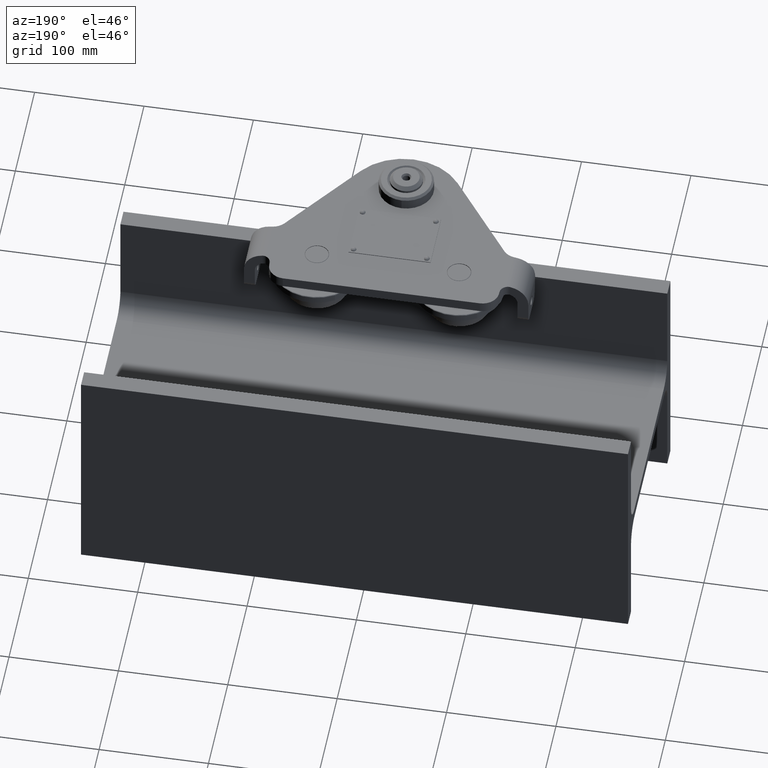
[diagram: clean part render]
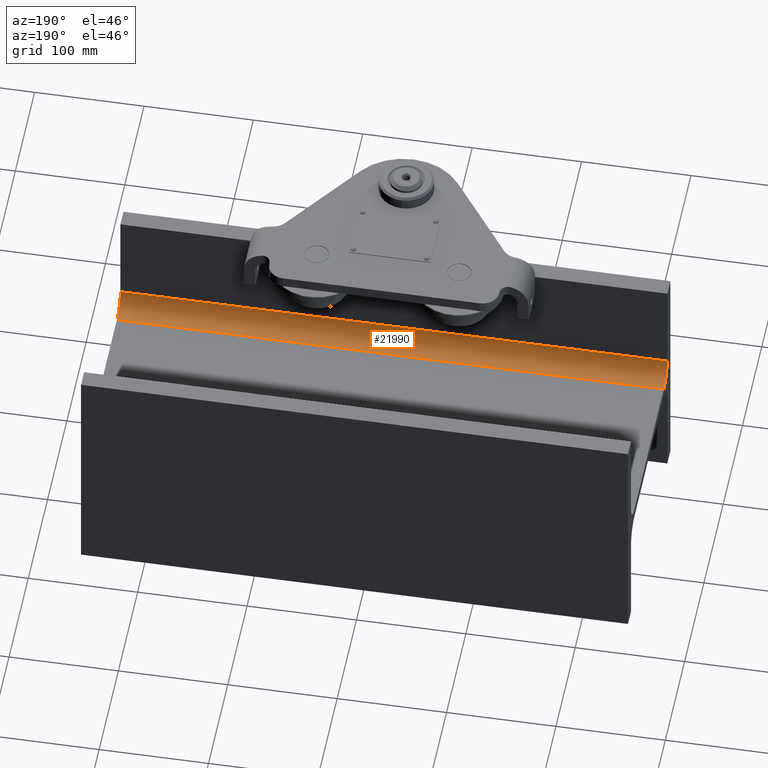
[diagram: same view with one face highlighted and labeled with its STEP entity id]
A machine part, auxiliary view. The second image highlights one B-rep face of the part: STEP entity #21990.
In plain terms, the highlighted cylindrical surface (edge-blend (fillet) strip) has radius 18 mm, axis along (1, 0, 0).
Its self-contained STEP definition (entity closure, byte-faithful):
#1301 = LINE ( 'NONE', #34233, #18823 ) ;
#3145 = EDGE_CURVE ( 'NONE', #26705, #13716, #1301, .T. ) ;
#3548 = AXIS2_PLACEMENT_3D ( 'NONE', #15181, #9466, #8940 ) ;
#3673 = VERTEX_POINT ( 'NONE', #33927 ) ;
#6015 = CARTESIAN_POINT ( 'NONE',  ( 250.0000000000000600, -75.99999999999973000, 22.74999999999997900 ) ) ;
#6408 = ORIENTED_EDGE ( 'NONE', *, *, #22876, .T. ) ;
#8940 = DIRECTION ( 'NONE',  ( 0.0000000000000000000, 0.0000000000000000000, -1.000000000000000000 ) ) ;
#9466 = DIRECTION ( 'NONE',  ( 1.000000000000000000, 0.0000000000000000000, 7.703719777548941700E-034 ) ) ;
#9697 = EDGE_CURVE ( 'NONE', #3673, #38536, #37397, .T. ) ;
#9775 = EDGE_CURVE ( 'NONE', #3673, #26705, #23555, .T. ) ;
#12147 = CARTESIAN_POINT ( 'NONE',  ( -250.0000000000000600, -93.99999999999974400, 22.74999999999991100 ) ) ;
#12946 = DIRECTION ( 'NONE',  ( 0.0000000000000000000, 0.0000000000000000000, -1.000000000000000000 ) ) ;
#13716 = VERTEX_POINT ( 'NONE', #17933 ) ;
#15181 = CARTESIAN_POINT ( 'NONE',  ( -250.0000000000000600, -75.99999999999973000, 22.74999999999997900 ) ) ;
#15240 = DIRECTION ( 'NONE',  ( 1.000000000000000000, 0.0000000000000000000, 7.703719777548941700E-034 ) ) ;
#17933 = CARTESIAN_POINT ( 'NONE',  ( 250.0000000000000600, -75.99999999999973000, 4.749999999999965400 ) ) ;
#18351 = CYLINDRICAL_SURFACE ( 'NONE', #3548, 18.00000000000001400 ) ;
#18823 = VECTOR ( 'NONE', #36938, 1000.000000000000000 ) ;
#19173 = DIRECTION ( 'NONE',  ( 1.000000000000000000, 0.0000000000000000000, 7.703719777548941700E-034 ) ) ;
#21427 = DIRECTION ( 'NONE',  ( 0.0000000000000000000, 0.0000000000000000000, -1.000000000000000000 ) ) ;
#21990 = ADVANCED_FACE ( 'NONE', ( #35931 ), #18351, .F. ) ;
#22876 = EDGE_CURVE ( 'NONE', #38536, #13716, #24730, .T. ) ;
#23555 = CIRCLE ( 'NONE', #26516, 18.00000000000001400 ) ;
#24730 = CIRCLE ( 'NONE', #34042, 18.00000000000001400 ) ;
#26516 = AXIS2_PLACEMENT_3D ( 'NONE', #33999, #19173, #12946 ) ;
#26705 = VERTEX_POINT ( 'NONE', #37288 ) ;
#28857 = ORIENTED_EDGE ( 'NONE', *, *, #9697, .T. ) ;
#30936 = CARTESIAN_POINT ( 'NONE',  ( 250.0000000000000600, -93.99999999999974400, 22.74999999999991100 ) ) ;
#33554 = DIRECTION ( 'NONE',  ( 1.000000000000000000, 0.0000000000000000000, 7.703719777548941700E-034 ) ) ;
#33927 = CARTESIAN_POINT ( 'NONE',  ( -250.0000000000000600, -93.99999999999974400, 22.74999999999991100 ) ) ;
#33999 = CARTESIAN_POINT ( 'NONE',  ( -250.0000000000000600, -75.99999999999973000, 22.74999999999997900 ) ) ;
#34042 = AXIS2_PLACEMENT_3D ( 'NONE', #6015, #33554, #21427 ) ;
#34233 = CARTESIAN_POINT ( 'NONE',  ( -250.0000000000000600, -75.99999999999973000, 4.749999999999965400 ) ) ;
#34358 = ORIENTED_EDGE ( 'NONE', *, *, #3145, .F. ) ;
#34766 = EDGE_LOOP ( 'NONE', ( #6408, #34358, #37526, #28857 ) ) ;
#35931 = FACE_OUTER_BOUND ( 'NONE', #34766, .T. ) ;
#36938 = DIRECTION ( 'NONE',  ( 1.000000000000000000, 0.0000000000000000000, 7.703719777548941700E-034 ) ) ;
#37288 = CARTESIAN_POINT ( 'NONE',  ( -250.0000000000000600, -75.99999999999973000, 4.749999999999965400 ) ) ;
#37397 = LINE ( 'NONE', #12147, #38881 ) ;
#37526 = ORIENTED_EDGE ( 'NONE', *, *, #9775, .F. ) ;
#38536 = VERTEX_POINT ( 'NONE', #30936 ) ;
#38881 = VECTOR ( 'NONE', #15240, 1000.000000000000000 ) ;